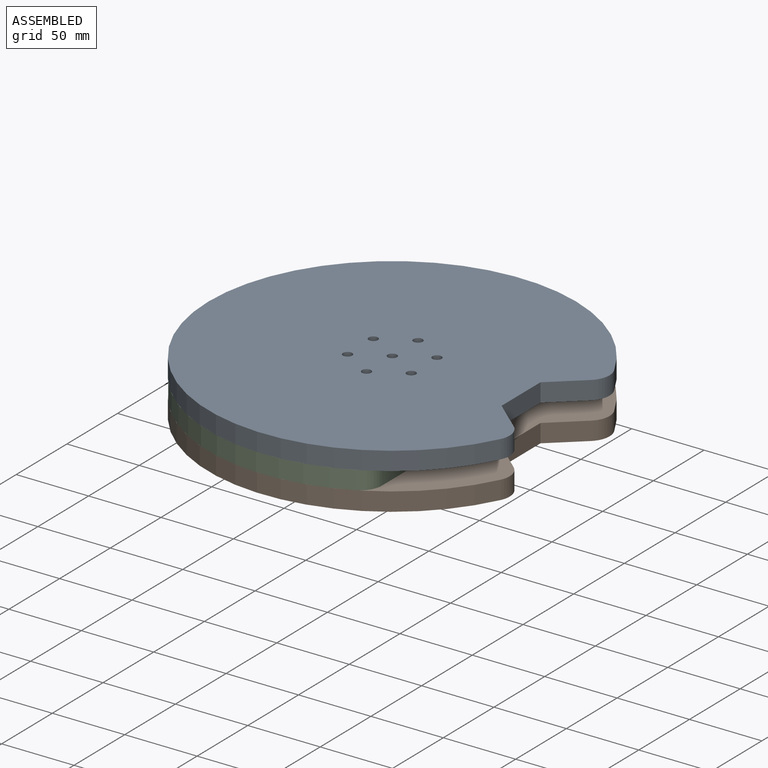
[diagram: assembled view]
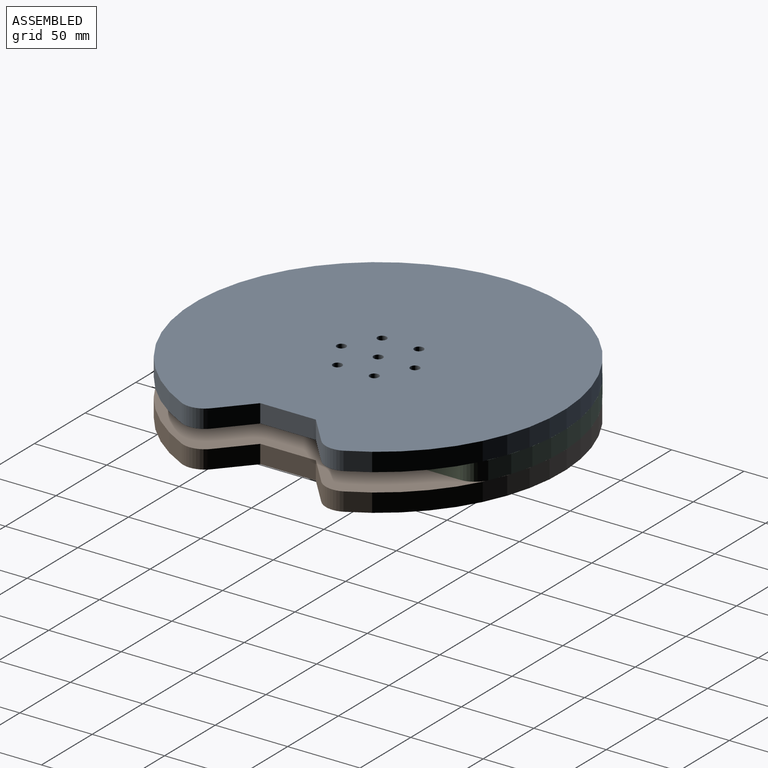
[diagram: assembled view, second angle]
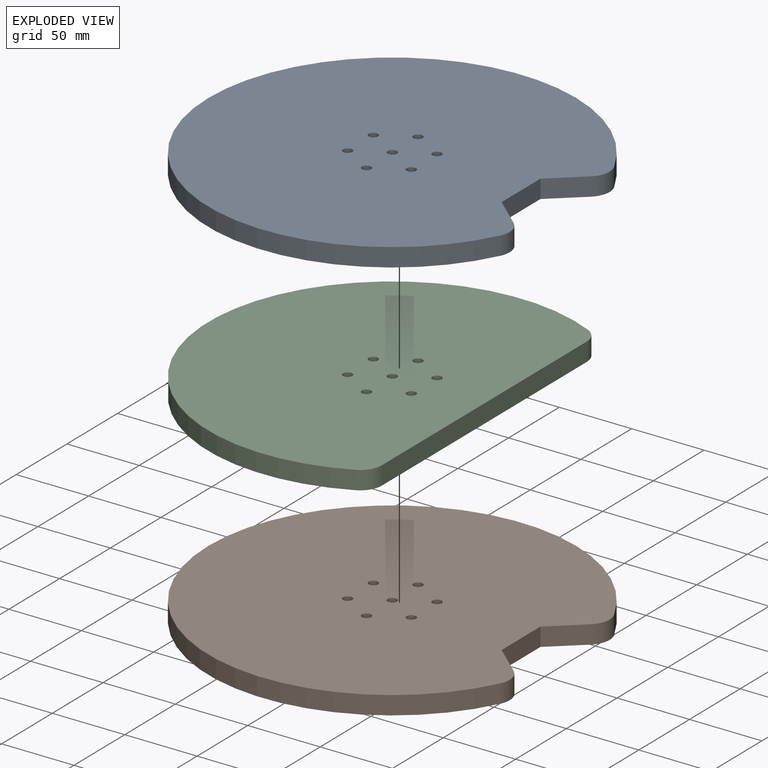
[diagram: exploded view]
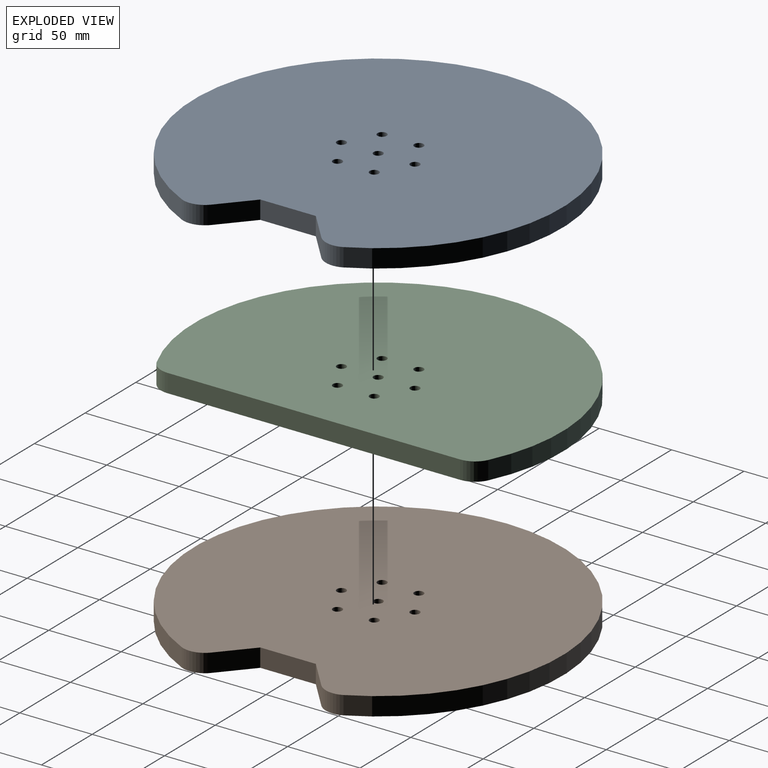
[diagram: exploded view, second angle]
ASSEMBLY  parts=3 mates=2
PART A: 15 faces, bbox 242.6x254x12.7 mm
  f0: cylinder r=127mm len=254mm, axis (0,0,-1), area 8663.7mm2, adj f1,f2,f6,f7
  f1: plane 254x242.56mm, normal (0,0,1), area 47979.7mm2, adj f0,f3,f4,f5,f6,f7,f8,f9
  f2: plane 254x242.56mm, normal (0,0,-1), area 47979.7mm2, adj f0,f3,f4,f5,f6,f7,f8,f9
  f3: plane 21.54x18.84mm, normal (0.66,0.75,0), area 363.4mm2, adj f1,f2,f5,f6
  f4: plane 21.54x18.84mm, normal (0.66,-0.75,0), area 363.4mm2, adj f1,f2,f5,f7
  f5: plane 38.35x12.7mm, normal (1,0,0), area 487.1mm2, adj f1,f2,f3,f4
  f6: cylinder r=15mm len=17.89mm, axis (0,0,-1), area 249.2mm2, adj f0,f1,f2,f3
  f7: cylinder r=15mm len=17.89mm, axis (0,0,-1), area 249.2mm2, adj f0,f1,f2,f4
  f8: cylinder r=3.17mm len=12.7mm, axis (0,0,1), area 253.4mm2, adj f1,f2
  f9: cylinder r=3.17mm len=12.7mm, axis (0,0,1), area 253.4mm2, adj f1,f2
  f10: cylinder r=3.17mm len=12.7mm, axis (0,0,1), area 253.4mm2, adj f1,f2
  f11: cylinder r=3.17mm len=12.7mm, axis (0,0,1), area 253.4mm2, adj f1,f2
  f12: cylinder r=3.17mm len=12.7mm, axis (0,0,1), area 253.4mm2, adj f1,f2
  f13: cylinder r=3.17mm len=12.7mm, axis (0,0,1), area 253.4mm2, adj f1,f2
  f14: cylinder r=3.17mm len=12.7mm, axis (0,0,1), area 253.4mm2, adj f1,f2
PART B: same geometry as A
PART C: 13 faces, bbox 190.5x254x12.7 mm
  f0: plane 201.91x12.7mm, normal (1,0,0), area 2564.2mm2, adj f1,f3,f4,f5
  f1: cylinder r=15mm len=13.52mm, axis (0,0,-1), area 213.9mm2, adj f0,f2,f4,f5
  f2: cylinder r=127mm len=254mm, axis (0,0,-1), area 6511.8mm2, adj f1,f3,f4,f5
  f3: cylinder r=15mm len=13.52mm, axis (0,0,-1), area 213.9mm2, adj f0,f2,f4,f5
  f4: plane 254x190.5mm, normal (0,0,1), area 40514.8mm2, adj f0,f1,f2,f3,f6,f7,f8,f9
  f5: plane 254x190.5mm, normal (0,0,-1), area 40514.8mm2, adj f0,f1,f2,f3,f6,f7,f8,f9
  f6: cylinder r=3.17mm len=12.7mm, axis (0,0,-1), area 253.4mm2, adj f4,f5
  f7: cylinder r=3.17mm len=12.7mm, axis (0,0,-1), area 253.4mm2, adj f4,f5
  f8: cylinder r=3.17mm len=12.7mm, axis (0,0,-1), area 253.4mm2, adj f4,f5
  f9: cylinder r=3.17mm len=12.7mm, axis (0,0,-1), area 253.4mm2, adj f4,f5
  f10: cylinder r=3.17mm len=12.7mm, axis (0,0,-1), area 253.4mm2, adj f4,f5
  f11: cylinder r=3.17mm len=12.7mm, axis (0,0,-1), area 253.4mm2, adj f4,f5
  f12: cylinder r=3.17mm len=12.7mm, axis (0,0,-1), area 253.4mm2, adj f4,f5
PLACE A t=(-7.04,2.59,43.84)mm
PLACE B t=(-7.04,2.59,18.44)mm
PLACE C t=(-7.04,2.59,31.14)mm
MATE fastened B.f0 <-> C.f2  axis (0,0,1) through (-7.04,2.59,31.14)mm
MATE fastened A.f8 <-> C.f2  axis (0,0,-1) through (-7.04,2.59,43.84)mm
